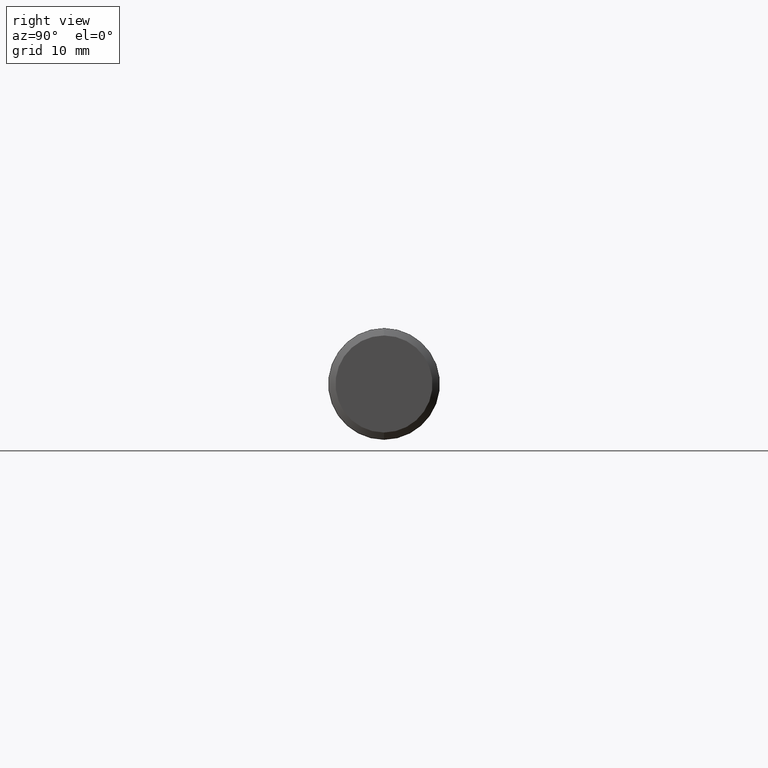
[diagram: clean part render]
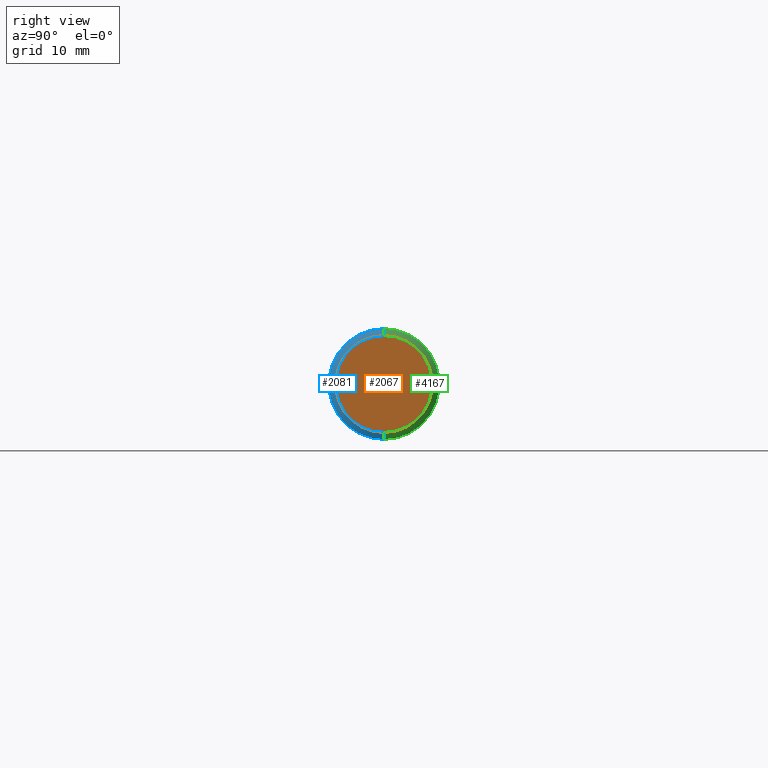
[diagram: same view with three faces highlighted in distinct colors, each labeled with its STEP entity id]
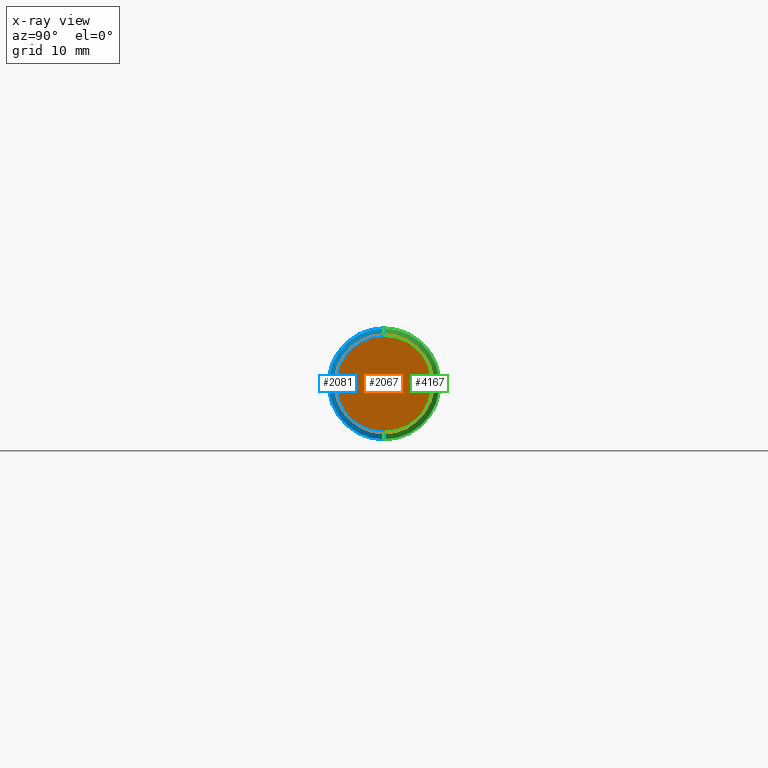
[diagram: x-ray of the same camera — body ghosted, the three highlighted faces saturated]
A machine part, right view with three faces highlighted in distinct colors.
The next image is the same camera in x-ray (body ghosted, the three faces saturated) — at least one of them is partly hidden behind the body in this view.
Their STEP definitions:

[orange] entity #2067 — the highlighted planar face has unit normal (1, 0, -0).
#140 = VERTEX_POINT ( 'NONE', #3999 ) ;
#620 = DIRECTION ( 'NONE',  ( 1.000000000000000000, -0.000000000000000000, -0.000000000000000000 ) ) ;
#714 = DIRECTION ( 'NONE',  ( 0.000000000000000000, 0.000000000000000000, -1.000000000000000000 ) ) ;
#719 = AXIS2_PLACEMENT_3D ( 'NONE', #4171, #620, #3068 ) ;
#895 = CIRCLE ( 'NONE', #719, 0.2716193286959167064 ) ;
#1261 = CARTESIAN_POINT ( 'NONE',  ( 4.000000000000000000, 0.3123500000000000165, 0.000000000000000000 ) ) ;
#1273 = CIRCLE ( 'NONE', #1523, 0.2716193286959167064 ) ;
#1317 = EDGE_LOOP ( 'NONE', ( #5026, #3652 ) ) ;
#1523 = AXIS2_PLACEMENT_3D ( 'NONE', #4772, #2752, #714 ) ;
#1526 = EDGE_CURVE ( 'NONE', #140, #4315, #1273, .T. ) ;
#1762 = EDGE_CURVE ( 'NONE', #4315, #140, #895, .T. ) ;
#2067 = ADVANCED_FACE ( 'NONE', ( #4823 ), #4796, .T. ) ;
#2752 = DIRECTION ( 'NONE',  ( 1.000000000000000000, -0.000000000000000000, -0.000000000000000000 ) ) ;
#2925 = AXIS2_PLACEMENT_3D ( 'NONE', #1261, #3601, #3284 ) ;
#3068 = DIRECTION ( 'NONE',  ( 0.000000000000000000, 0.000000000000000000, -1.000000000000000000 ) ) ;
#3284 = DIRECTION ( 'NONE',  ( -0.000000000000000000, 0.000000000000000000, -1.000000000000000000 ) ) ;
#3601 = DIRECTION ( 'NONE',  ( 1.000000000000000000, 0.000000000000000000, -0.000000000000000000 ) ) ;
#3652 = ORIENTED_EDGE ( 'NONE', *, *, #1526, .T. ) ;
#3999 = CARTESIAN_POINT ( 'NONE',  ( 4.000000000000000000, 3.326377414740071908E-17, -0.2716193286959167064 ) ) ;
#4171 = CARTESIAN_POINT ( 'NONE',  ( 4.000000000000000000, 0.000000000000000000, 0.000000000000000000 ) ) ;
#4315 = VERTEX_POINT ( 'NONE', #4881 ) ;
#4772 = CARTESIAN_POINT ( 'NONE',  ( 4.000000000000000000, 0.000000000000000000, 0.000000000000000000 ) ) ;
#4796 = PLANE ( 'NONE',  #2925 ) ;
#4823 = FACE_OUTER_BOUND ( 'NONE', #1317, .T. ) ;
#4881 = CARTESIAN_POINT ( 'NONE',  ( 4.000000000000000000, 0.000000000000000000, 0.2716193286959167064 ) ) ;
#5026 = ORIENTED_EDGE ( 'NONE', *, *, #1762, .T. ) ;

[blue] entity #2081 — the highlighted conical surface has half-angle 60 deg.
#27 = DIRECTION ( 'NONE',  ( 0.000000000000000000, 0.000000000000000000, 1.000000000000000000 ) ) ;
#209 = AXIS2_PLACEMENT_3D ( 'NONE', #4405, #4721, #27 ) ;
#488 = DIRECTION ( 'NONE',  ( 0.000000000000000000, 0.000000000000000000, 1.000000000000000000 ) ) ;
#664 = EDGE_CURVE ( 'NONE', #2768, #3316, #1019, .T. ) ;
#686 = EDGE_LOOP ( 'NONE', ( #1831, #2089, #1158, #3430 ) ) ;
#777 = VERTEX_POINT ( 'NONE', #3386 ) ;
#905 = CARTESIAN_POINT ( 'NONE',  ( 3.963293903707116872, 0.000000000000000000, 0.3299999999999999600 ) ) ;
#939 = DIRECTION ( 'NONE',  ( -0.4999999999999935052, 1.060575238724911352E-16, -0.8660254037844422603 ) ) ;
#958 = DIRECTION ( 'NONE',  ( 0.000000000000000000, 0.000000000000000000, 1.000000000000000000 ) ) ;
#991 = CARTESIAN_POINT ( 'NONE',  ( 3.963293903707116872, 4.041334437186264647E-17, -0.3299999999999999600 ) ) ;
#1019 = CIRCLE ( 'NONE', #3758, 0.2716193286959167064 ) ;
#1036 = CARTESIAN_POINT ( 'NONE',  ( 3.996999999999999886, 0.000000000000000000, 0.2716193286959167064 ) ) ;
#1158 = ORIENTED_EDGE ( 'NONE', *, *, #5107, .T. ) ;
#1234 = CARTESIAN_POINT ( 'NONE',  ( 3.963293903707116872, 0.000000000000000000, 0.000000000000000000 ) ) ;
#1239 = LINE ( 'NONE', #905, #3047 ) ;
#1583 = CONICAL_SURFACE ( 'NONE', #4564, 0.3299999999999999600, 1.047197551196605181 ) ;
#1617 = VECTOR ( 'NONE', #939, 39.37007874015748854 ) ;
#1831 = ORIENTED_EDGE ( 'NONE', *, *, #3303, .F. ) ;
#2081 = ADVANCED_FACE ( 'NONE', ( #3336 ), #1583, .T. ) ;
#2089 = ORIENTED_EDGE ( 'NONE', *, *, #664, .T. ) ;
#2115 = CIRCLE ( 'NONE', #209, 0.3099999999999999978 ) ;
#2158 = LINE ( 'NONE', #991, #1617 ) ;
#2368 = CARTESIAN_POINT ( 'NONE',  ( 3.974840909090909147, 3.796405077356794548E-17, -0.3099999999999999978 ) ) ;
#2431 = CARTESIAN_POINT ( 'NONE',  ( 3.996999999999999886, 0.000000000000000000, 0.000000000000000000 ) ) ;
#2768 = VERTEX_POINT ( 'NONE', #4552 ) ;
#2831 = DIRECTION ( 'NONE',  ( -1.000000000000000000, -0.000000000000000000, -0.000000000000000000 ) ) ;
#3047 = VECTOR ( 'NONE', #3260, 39.37007874015748854 ) ;
#3260 = DIRECTION ( 'NONE',  ( -0.4999999999999935052, 0.000000000000000000, 0.8660254037844422603 ) ) ;
#3303 = EDGE_CURVE ( 'NONE', #2768, #4690, #2158, .T. ) ;
#3316 = VERTEX_POINT ( 'NONE', #1036 ) ;
#3336 = FACE_OUTER_BOUND ( 'NONE', #686, .T. ) ;
#3386 = CARTESIAN_POINT ( 'NONE',  ( 3.974840909090909147, 0.000000000000000000, 0.3099999999999999978 ) ) ;
#3430 = ORIENTED_EDGE ( 'NONE', *, *, #3884, .F. ) ;
#3758 = AXIS2_PLACEMENT_3D ( 'NONE', #2431, #4197, #958 ) ;
#3884 = EDGE_CURVE ( 'NONE', #4690, #777, #2115, .T. ) ;
#4197 = DIRECTION ( 'NONE',  ( -1.000000000000000000, -0.000000000000000000, -0.000000000000000000 ) ) ;
#4405 = CARTESIAN_POINT ( 'NONE',  ( 3.974840909090909147, 0.000000000000000000, 0.000000000000000000 ) ) ;
#4552 = CARTESIAN_POINT ( 'NONE',  ( 3.996999999999999886, 3.326377414740072525E-17, -0.2716193286959167619 ) ) ;
#4564 = AXIS2_PLACEMENT_3D ( 'NONE', #1234, #2831, #488 ) ;
#4690 = VERTEX_POINT ( 'NONE', #2368 ) ;
#4721 = DIRECTION ( 'NONE',  ( -1.000000000000000000, -0.000000000000000000, -0.000000000000000000 ) ) ;
#5107 = EDGE_CURVE ( 'NONE', #3316, #777, #1239, .T. ) ;

[green] entity #4167 — the highlighted conical surface has half-angle 60 deg.
#45 = DIRECTION ( 'NONE',  ( -1.000000000000000000, -0.000000000000000000, -0.000000000000000000 ) ) ;
#406 = DIRECTION ( 'NONE',  ( 0.000000000000000000, 0.000000000000000000, 1.000000000000000000 ) ) ;
#565 = AXIS2_PLACEMENT_3D ( 'NONE', #3653, #45, #406 ) ;
#777 = VERTEX_POINT ( 'NONE', #3386 ) ;
#905 = CARTESIAN_POINT ( 'NONE',  ( 3.963293903707116872, 0.000000000000000000, 0.3299999999999999600 ) ) ;
#939 = DIRECTION ( 'NONE',  ( -0.4999999999999935052, 1.060575238724911352E-16, -0.8660254037844422603 ) ) ;
#991 = CARTESIAN_POINT ( 'NONE',  ( 3.963293903707116872, 4.041334437186264647E-17, -0.3299999999999999600 ) ) ;
#1036 = CARTESIAN_POINT ( 'NONE',  ( 3.996999999999999886, 0.000000000000000000, 0.2716193286959167064 ) ) ;
#1236 = ORIENTED_EDGE ( 'NONE', *, *, #5107, .F. ) ;
#1239 = LINE ( 'NONE', #905, #3047 ) ;
#1464 = CONICAL_SURFACE ( 'NONE', #3125, 0.3299999999999999600, 1.047197551196605181 ) ;
#1617 = VECTOR ( 'NONE', #939, 39.37007874015748854 ) ;
#1663 = EDGE_CURVE ( 'NONE', #3316, #2768, #2289, .T. ) ;
#1722 = CIRCLE ( 'NONE', #565, 0.3099999999999999978 ) ;
#1909 = CARTESIAN_POINT ( 'NONE',  ( 3.963293903707116872, 0.000000000000000000, 0.000000000000000000 ) ) ;
#1959 = FACE_OUTER_BOUND ( 'NONE', #4367, .T. ) ;
#2158 = LINE ( 'NONE', #991, #1617 ) ;
#2289 = CIRCLE ( 'NONE', #4277, 0.2716193286959167064 ) ;
#2368 = CARTESIAN_POINT ( 'NONE',  ( 3.974840909090909147, 3.796405077356794548E-17, -0.3099999999999999978 ) ) ;
#2524 = DIRECTION ( 'NONE',  ( -1.000000000000000000, -0.000000000000000000, -0.000000000000000000 ) ) ;
#2768 = VERTEX_POINT ( 'NONE', #4552 ) ;
#3047 = VECTOR ( 'NONE', #3260, 39.37007874015748854 ) ;
#3125 = AXIS2_PLACEMENT_3D ( 'NONE', #1909, #4687, #5093 ) ;
#3249 = ORIENTED_EDGE ( 'NONE', *, *, #4310, .F. ) ;
#3260 = DIRECTION ( 'NONE',  ( -0.4999999999999935052, 0.000000000000000000, 0.8660254037844422603 ) ) ;
#3303 = EDGE_CURVE ( 'NONE', #2768, #4690, #2158, .T. ) ;
#3316 = VERTEX_POINT ( 'NONE', #1036 ) ;
#3386 = CARTESIAN_POINT ( 'NONE',  ( 3.974840909090909147, 0.000000000000000000, 0.3099999999999999978 ) ) ;
#3566 = ORIENTED_EDGE ( 'NONE', *, *, #3303, .T. ) ;
#3653 = CARTESIAN_POINT ( 'NONE',  ( 3.974840909090909147, 0.000000000000000000, 0.000000000000000000 ) ) ;
#3692 = DIRECTION ( 'NONE',  ( 0.000000000000000000, 0.000000000000000000, 1.000000000000000000 ) ) ;
#4070 = CARTESIAN_POINT ( 'NONE',  ( 3.996999999999999886, 0.000000000000000000, 0.000000000000000000 ) ) ;
#4167 = ADVANCED_FACE ( 'NONE', ( #1959 ), #1464, .T. ) ;
#4277 = AXIS2_PLACEMENT_3D ( 'NONE', #4070, #2524, #3692 ) ;
#4310 = EDGE_CURVE ( 'NONE', #777, #4690, #1722, .T. ) ;
#4367 = EDGE_LOOP ( 'NONE', ( #4769, #3566, #3249, #1236 ) ) ;
#4552 = CARTESIAN_POINT ( 'NONE',  ( 3.996999999999999886, 3.326377414740072525E-17, -0.2716193286959167619 ) ) ;
#4687 = DIRECTION ( 'NONE',  ( -1.000000000000000000, -0.000000000000000000, -0.000000000000000000 ) ) ;
#4690 = VERTEX_POINT ( 'NONE', #2368 ) ;
#4769 = ORIENTED_EDGE ( 'NONE', *, *, #1663, .T. ) ;
#5093 = DIRECTION ( 'NONE',  ( 0.000000000000000000, 0.000000000000000000, 1.000000000000000000 ) ) ;
#5107 = EDGE_CURVE ( 'NONE', #3316, #777, #1239, .T. ) ;